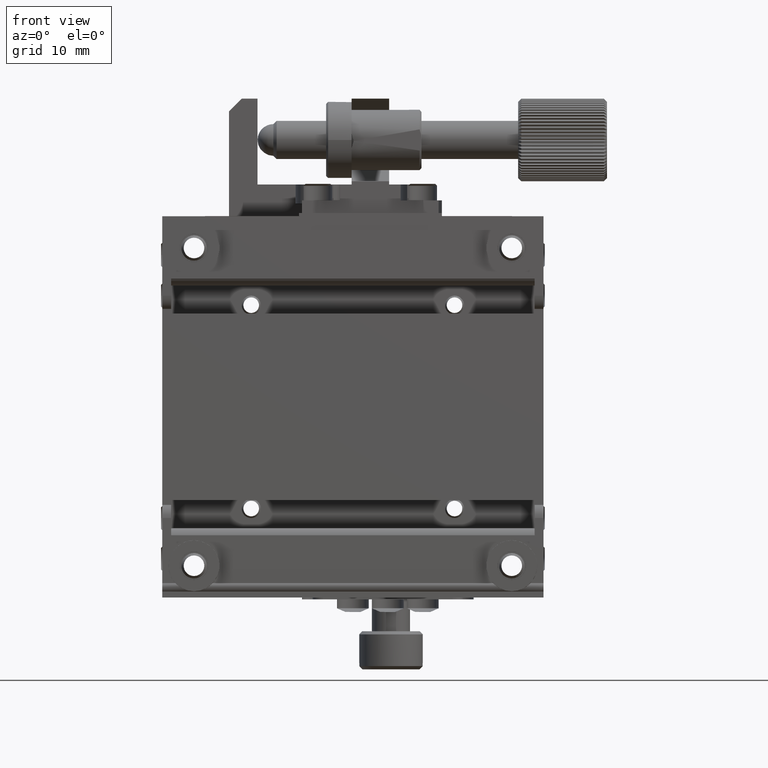
[diagram: clean part render]
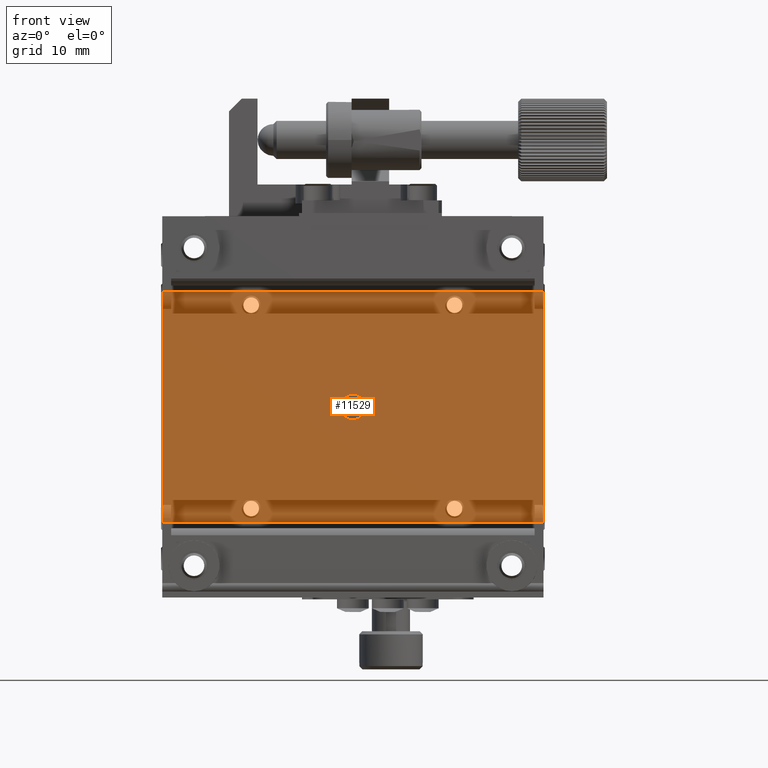
[diagram: same view with one face highlighted and labeled with its STEP entity id]
A machine part, front view. The second image highlights one B-rep face of the part: STEP entity #11529.
In plain terms, the highlighted planar face has unit normal (0, 1, 0).
Its self-contained STEP definition (entity closure, byte-faithful):
#708 = VECTOR ( 'NONE', #6393, 1000.000000000000000 ) ;
#915 = VECTOR ( 'NONE', #10640, 1000.000000000000000 ) ;
#992 = CARTESIAN_POINT ( 'NONE',  ( -30.00000000000000000, 0.3499999999999999778, 0.000000000000000000 ) ) ;
#1824 = VERTEX_POINT ( 'NONE', #3638 ) ;
#2168 = VERTEX_POINT ( 'NONE', #14140 ) ;
#3154 = VECTOR ( 'NONE', #9225, 1000.000000000000000 ) ;
#3638 = CARTESIAN_POINT ( 'NONE',  ( 30.00000000000000000, 0.3499999999999997558, 18.14999999999999858 ) ) ;
#3771 = ORIENTED_EDGE ( 'NONE', *, *, #10889, .T. ) ;
#4389 = LINE ( 'NONE', #7894, #3154 ) ;
#4407 = LINE ( 'NONE', #9826, #15534 ) ;
#4900 = CARTESIAN_POINT ( 'NONE',  ( 0.000000000000000000, 0.3499999999999999778, 0.000000000000000000 ) ) ;
#5151 = ORIENTED_EDGE ( 'NONE', *, *, #5782, .T. ) ;
#5243 = FACE_BOUND ( 'NONE', #7906, .T. ) ;
#5439 = CARTESIAN_POINT ( 'NONE',  ( -30.00000000000000000, 0.3499999999999997558, 18.14999999999999858 ) ) ;
#5559 = ORIENTED_EDGE ( 'NONE', *, *, #7034, .T. ) ;
#5568 = AXIS2_PLACEMENT_3D ( 'NONE', #10901, #8158, #16300 ) ;
#5782 = EDGE_CURVE ( 'NONE', #2168, #2168, #13227, .T. ) ;
#5815 = ORIENTED_EDGE ( 'NONE', *, *, #10866, .T. ) ;
#6393 = DIRECTION ( 'NONE',  ( 0.000000000000000000, -0.000000000000000000, 1.000000000000000000 ) ) ;
#7034 = EDGE_CURVE ( 'NONE', #14928, #15930, #4407, .T. ) ;
#7515 = ORIENTED_EDGE ( 'NONE', *, *, #14534, .T. ) ;
#7894 = CARTESIAN_POINT ( 'NONE',  ( 30.00000000000000000, 0.3499999999999999778, 0.000000000000000000 ) ) ;
#7906 = EDGE_LOOP ( 'NONE', ( #5151 ) ) ;
#8158 = DIRECTION ( 'NONE',  ( -0.000000000000000000, -1.000000000000000000, -0.000000000000000000 ) ) ;
#8931 = VERTEX_POINT ( 'NONE', #5439 ) ;
#9225 = DIRECTION ( 'NONE',  ( -0.000000000000000000, 0.000000000000000000, -1.000000000000000000 ) ) ;
#9826 = CARTESIAN_POINT ( 'NONE',  ( 0.000000000000000000, 0.3499999999999999778, -18.14999999999999858 ) ) ;
#10556 = LINE ( 'NONE', #15954, #915 ) ;
#10640 = DIRECTION ( 'NONE',  ( 1.000000000000000000, 0.000000000000000000, -0.000000000000000000 ) ) ;
#10664 = DIRECTION ( 'NONE',  ( 0.000000000000000000, -0.000000000000000000, 1.000000000000000000 ) ) ;
#10866 = EDGE_CURVE ( 'NONE', #8931, #1824, #10556, .T. ) ;
#10889 = EDGE_CURVE ( 'NONE', #1824, #14928, #4389, .T. ) ;
#10901 = CARTESIAN_POINT ( 'NONE',  ( 0.000000000000000000, 0.3499999999999999778, 0.000000000000000000 ) ) ;
#11529 = ADVANCED_FACE ( 'NONE', ( #13063, #5243 ), #13323, .T. ) ;
#11988 = LINE ( 'NONE', #992, #708 ) ;
#13063 = FACE_OUTER_BOUND ( 'NONE', #16944, .T. ) ;
#13227 = CIRCLE ( 'NONE', #5568, 2.000000000000000000 ) ;
#13323 = PLANE ( 'NONE',  #16188 ) ;
#13638 = CARTESIAN_POINT ( 'NONE',  ( -30.00000000000000000, 0.3499999999999998113, -18.14999999999999858 ) ) ;
#14140 = CARTESIAN_POINT ( 'NONE',  ( 0.000000000000000000, 0.3499999999999999778, 2.000000000000000000 ) ) ;
#14534 = EDGE_CURVE ( 'NONE', #15930, #8931, #11988, .T. ) ;
#14883 = CARTESIAN_POINT ( 'NONE',  ( 30.00000000000000000, 0.3499999999999997002, -18.14999999999999858 ) ) ;
#14928 = VERTEX_POINT ( 'NONE', #14883 ) ;
#15534 = VECTOR ( 'NONE', #16651, 1000.000000000000000 ) ;
#15930 = VERTEX_POINT ( 'NONE', #13638 ) ;
#15954 = CARTESIAN_POINT ( 'NONE',  ( 0.000000000000000000, 0.3499999999999999778, 18.14999999999999858 ) ) ;
#16188 = AXIS2_PLACEMENT_3D ( 'NONE', #4900, #17141, #10664 ) ;
#16300 = DIRECTION ( 'NONE',  ( 0.000000000000000000, 0.000000000000000000, 1.000000000000000000 ) ) ;
#16651 = DIRECTION ( 'NONE',  ( -1.000000000000000000, -0.000000000000000000, 0.000000000000000000 ) ) ;
#16944 = EDGE_LOOP ( 'NONE', ( #5559, #7515, #5815, #3771 ) ) ;
#17141 = DIRECTION ( 'NONE',  ( 0.000000000000000000, 1.000000000000000000, 0.000000000000000000 ) ) ;